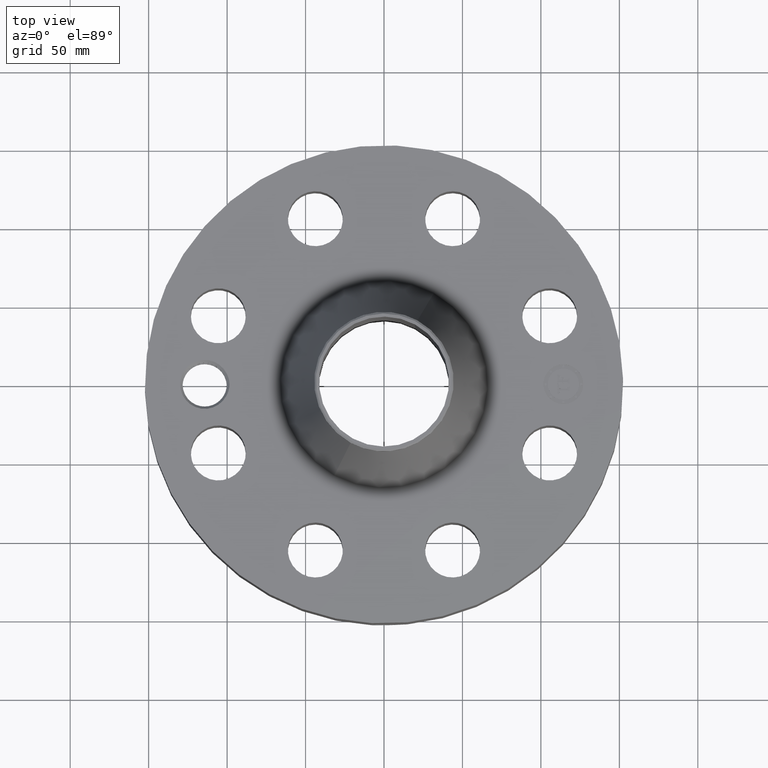
[diagram: clean part render]
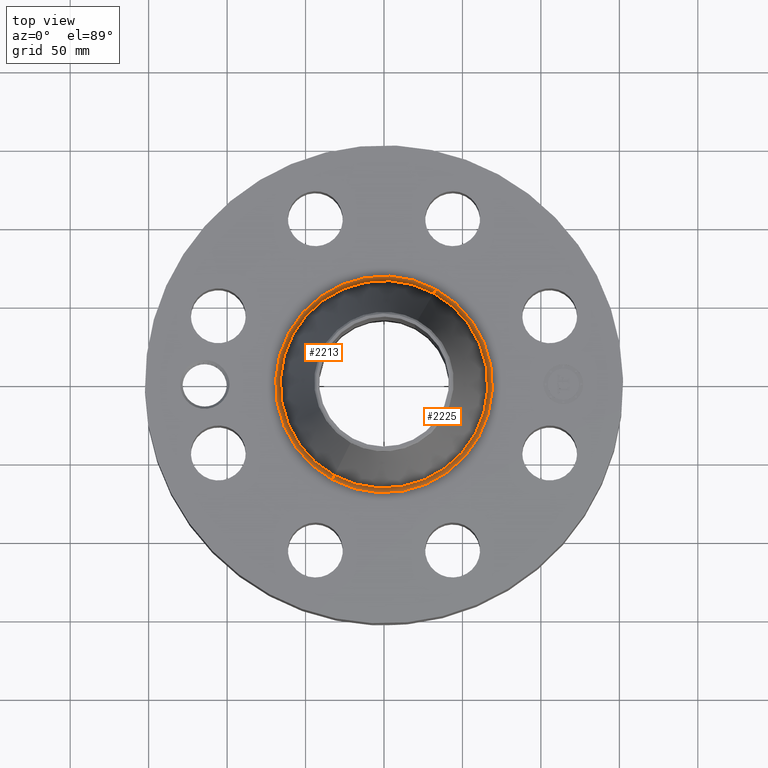
[diagram: same view with one multi-face feature highlighted, each face labeled with its STEP entity id]
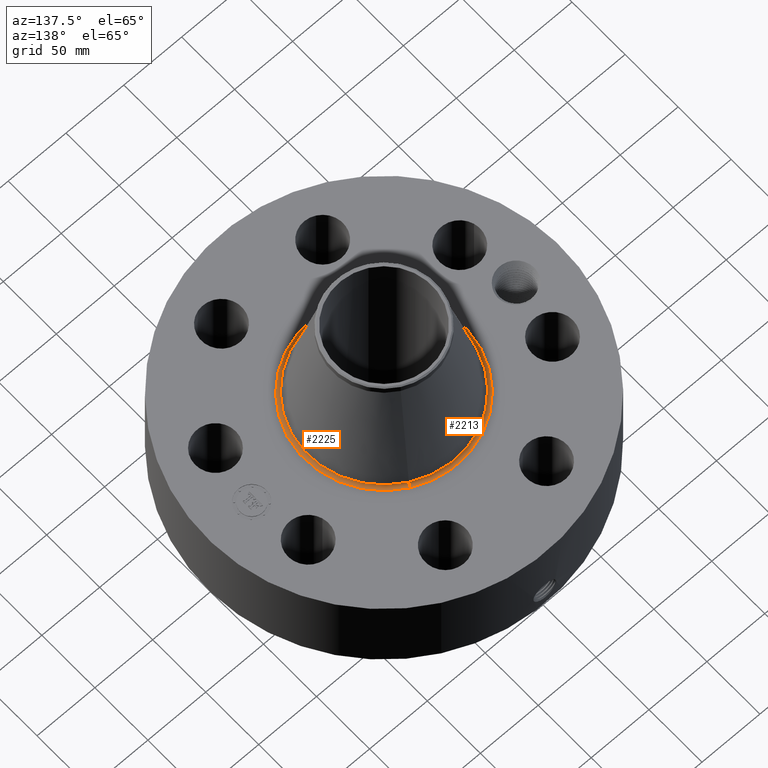
[diagram: same view with one multi-face feature highlighted, each face labeled with its STEP entity id]
A machine part, top view. The highlighted faces form ONE feature: a constant-radius fillet chain: 2 tangent blend faces with common blend radius 3.048 mm. The faces share edges in the B-rep.
A second angle (auxiliary view) of the same feature is appended — it is thin or edge-on in the first view.
Their STEP definitions:
[1] entity #2213 (Torus):
#1705=AXIS2_PLACEMENT_3D('Circle Axis2P3D',#1703,#1704,$) ;
#2186=AXIS2_PLACEMENT_3D('Torus Axis2P3D',#2183,#2184,#2185) ;
#2190=AXIS2_PLACEMENT_3D('Circle Axis2P3D',#2188,#2189,$) ;
#2199=AXIS2_PLACEMENT_3D('Circle Axis2P3D',#2197,#2198,$) ;
#2204=AXIS2_PLACEMENT_3D('Circle Axis2P3D',#2202,#2203,$) ;
#1703=CARTESIAN_POINT('Axis2P3D Location',(0.,0.,3.08760860086)) ;
#1707=CARTESIAN_POINT('Vertex',(-1.24808265623,-2.28459997791,3.08760860086)) ;
#1709=CARTESIAN_POINT('Vertex',(1.24808265623,2.28459997791,3.08760860086)) ;
#2183=CARTESIAN_POINT('Axis2P3D Location',(0.,0.,3.11500000001)) ;
#2188=CARTESIAN_POINT('Axis2P3D Location',(0.,0.,2.99500000001)) ;
#2192=CARTESIAN_POINT('Vertex',(-1.30409489055,-2.38712968511,2.99500000001)) ;
#2194=CARTESIAN_POINT('Vertex',(1.30409489055,2.38712968511,2.99500000001)) ;
#2197=CARTESIAN_POINT('Axis2P3D Location',(-1.30409489055,-2.38712968511,3.11500000001)) ;
#2202=CARTESIAN_POINT('Axis2P3D Location',(1.30409489055,2.38712968511,3.11500000001)) ;
#1704=DIRECTION('Axis2P3D Direction',(0.,0.,-0.0393700787402)) ;
#2184=DIRECTION('Axis2P3D Direction',(0.,0.,-0.0393700787402)) ;
#2185=DIRECTION('Axis2P3D XDirection',(0.0188750212049,0.0345504945626,0.)) ;
#2189=DIRECTION('Axis2P3D Direction',(0.,0.,-0.0393700787402)) ;
#2198=DIRECTION('Axis2P3D Direction',(0.0345504945626,-0.0188750212049,0.)) ;
#2203=DIRECTION('Axis2P3D Direction',(-0.0345504945626,0.0188750212049,0.)) ;
#2208=ORIENTED_EDGE('',*,*,#2196,.F.) ;
#2209=ORIENTED_EDGE('',*,*,#2201,.T.) ;
#2210=ORIENTED_EDGE('',*,*,#1711,.T.) ;
#2211=ORIENTED_EDGE('',*,*,#2206,.F.) ;
#2213=ADVANCED_FACE('PartBody',(#2212),#2187,.F.) ;
#1706=CIRCLE('generated circle',#1705,2.60328780119) ;
#2191=CIRCLE('generated circle',#2190,2.72011977992) ;
#2200=CIRCLE('generated circle',#2199,0.12) ;
#2205=CIRCLE('generated circle',#2204,0.12) ;
#2187=TOROIDAL_SURFACE('homeo Torus',#2186,2.72011977992,0.12) ;
#1711=EDGE_CURVE('',#1708,#1710,#1706,.T.) ;
#2196=EDGE_CURVE('',#2193,#2195,#2191,.T.) ;
#2201=EDGE_CURVE('',#2193,#1708,#2200,.T.) ;
#2206=EDGE_CURVE('',#2195,#1710,#2205,.T.) ;
#2207=EDGE_LOOP('',(#2208,#2209,#2210,#2211)) ;
#2212=FACE_OUTER_BOUND('',#2207,.T.) ;
#1708=VERTEX_POINT('',#1707) ;
#1710=VERTEX_POINT('',#1709) ;
#2193=VERTEX_POINT('',#2192) ;
#2195=VERTEX_POINT('',#2194) ;
[2] entity #2225 (Torus):
#1731=AXIS2_PLACEMENT_3D('Circle Axis2P3D',#1729,#1730,$) ;
#2186=AXIS2_PLACEMENT_3D('Torus Axis2P3D',#2183,#2184,#2185) ;
#2199=AXIS2_PLACEMENT_3D('Circle Axis2P3D',#2197,#2198,$) ;
#2204=AXIS2_PLACEMENT_3D('Circle Axis2P3D',#2202,#2203,$) ;
#2216=AXIS2_PLACEMENT_3D('Circle Axis2P3D',#2214,#2215,$) ;
#1707=CARTESIAN_POINT('Vertex',(-1.24808265623,-2.28459997791,3.08760860086)) ;
#1709=CARTESIAN_POINT('Vertex',(1.24808265623,2.28459997791,3.08760860086)) ;
#1729=CARTESIAN_POINT('Axis2P3D Location',(0.,0.,3.08760860086)) ;
#2183=CARTESIAN_POINT('Axis2P3D Location',(0.,0.,3.11500000001)) ;
#2192=CARTESIAN_POINT('Vertex',(-1.30409489055,-2.38712968511,2.99500000001)) ;
#2194=CARTESIAN_POINT('Vertex',(1.30409489055,2.38712968511,2.99500000001)) ;
#2197=CARTESIAN_POINT('Axis2P3D Location',(-1.30409489055,-2.38712968511,3.11500000001)) ;
#2202=CARTESIAN_POINT('Axis2P3D Location',(1.30409489055,2.38712968511,3.11500000001)) ;
#2214=CARTESIAN_POINT('Axis2P3D Location',(0.,0.,2.99500000001)) ;
#1730=DIRECTION('Axis2P3D Direction',(0.,0.,-0.0393700787402)) ;
#2184=DIRECTION('Axis2P3D Direction',(0.,0.,-0.0393700787402)) ;
#2185=DIRECTION('Axis2P3D XDirection',(0.0188750212049,0.0345504945626,0.)) ;
#2198=DIRECTION('Axis2P3D Direction',(0.0345504945626,-0.0188750212049,0.)) ;
#2203=DIRECTION('Axis2P3D Direction',(-0.0345504945626,0.0188750212049,0.)) ;
#2215=DIRECTION('Axis2P3D Direction',(0.,0.,-0.0393700787402)) ;
#2220=ORIENTED_EDGE('',*,*,#2218,.F.) ;
#2221=ORIENTED_EDGE('',*,*,#2206,.T.) ;
#2222=ORIENTED_EDGE('',*,*,#1733,.T.) ;
#2223=ORIENTED_EDGE('',*,*,#2201,.F.) ;
#2225=ADVANCED_FACE('PartBody',(#2224),#2187,.F.) ;
#1732=CIRCLE('generated circle',#1731,2.60328780119) ;
#2200=CIRCLE('generated circle',#2199,0.12) ;
#2205=CIRCLE('generated circle',#2204,0.12) ;
#2217=CIRCLE('generated circle',#2216,2.72011977992) ;
#2187=TOROIDAL_SURFACE('homeo Torus',#2186,2.72011977992,0.12) ;
#1733=EDGE_CURVE('',#1710,#1708,#1732,.T.) ;
#2201=EDGE_CURVE('',#2193,#1708,#2200,.T.) ;
#2206=EDGE_CURVE('',#2195,#1710,#2205,.T.) ;
#2218=EDGE_CURVE('',#2195,#2193,#2217,.T.) ;
#2219=EDGE_LOOP('',(#2220,#2221,#2222,#2223)) ;
#2224=FACE_OUTER_BOUND('',#2219,.T.) ;
#1708=VERTEX_POINT('',#1707) ;
#1710=VERTEX_POINT('',#1709) ;
#2193=VERTEX_POINT('',#2192) ;
#2195=VERTEX_POINT('',#2194) ;